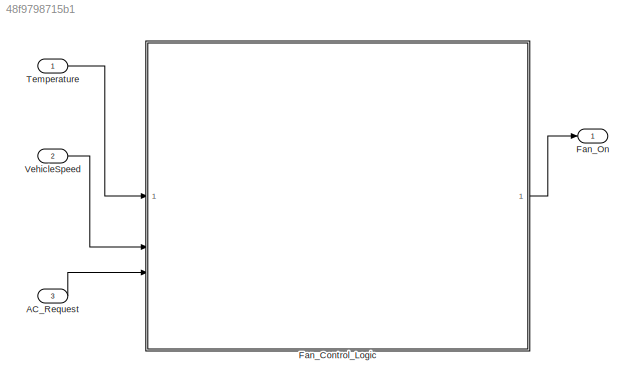
MODEL slx_48f9798715b1
KIND model
CONFIG AbsTol = auto
CONFIG EnableMultiTasking = off
CONFIG FixedStep = auto
CONFIG MaxStep = auto
CONFIG MinStep = auto
CONFIG RelTol = 1e-3
CONFIG SampleTimeConstraint = Unconstrained
CONFIG SolverName = VariableStepAuto
CONFIG StartTime = 0.0
CONFIG StopTime = 10.0
BLOCK [Inport] AC_Request
  OutDataTypeStr = boolean
  Port = 3
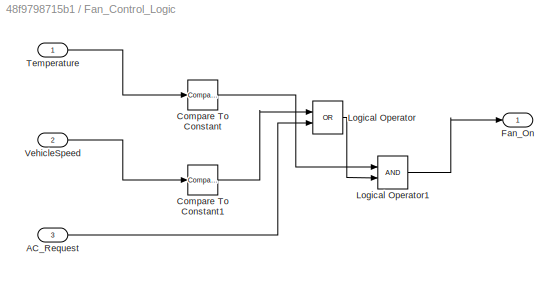
BLOCK [SubSystem] Fan_Control_Logic
BLOCK [Inport] Fan_Control_Logic/AC_Request
  Port = 3
BLOCK [Reference] Fan_Control_Logic/Compare To Constant  REF=simulink/Logic and Bit
Operations/Compare
To Constant
  SourceBlock = simulink/Logic and Bit\nOperations/Compare\nTo Constant
  SourceType = Compare To Constant
BLOCK [Reference] Fan_Control_Logic/Compare To Constant1  REF=simulink/Logic and Bit
Operations/Compare
To Constant
  SourceBlock = simulink/Logic and Bit\nOperations/Compare\nTo Constant
  SourceType = Compare To Constant
BLOCK [Outport] Fan_Control_Logic/Fan_On
BLOCK [Logic] Fan_Control_Logic/Logical Operator
  AllPortsSameDT = off
  Operator = OR
  OutDataTypeStr = boolean
BLOCK [Logic] Fan_Control_Logic/Logical Operator1
  AllPortsSameDT = off
  OutDataTypeStr = boolean
BLOCK [Inport] Fan_Control_Logic/Temperature
BLOCK [Inport] Fan_Control_Logic/VehicleSpeed
  Port = 2
BLOCK [Outport] Fan_On
BLOCK [Inport] Temperature
BLOCK [Inport] VehicleSpeed
  Port = 2
LINE AC_Request:1 -> Fan_Control_Logic:3
LINE Fan_Control_Logic/AC_Request:1 -> Fan_Control_Logic/Logical Operator:2
LINE Fan_Control_Logic/Compare To Constant1:1 -> Fan_Control_Logic/Logical Operator:1
LINE Fan_Control_Logic/Compare To Constant:1 -> Fan_Control_Logic/Logical Operator1:1
LINE Fan_Control_Logic/Logical Operator1:1 -> Fan_Control_Logic/Fan_On:1
LINE Fan_Control_Logic/Logical Operator:1 -> Fan_Control_Logic/Logical Operator1:2
LINE Fan_Control_Logic/Temperature:1 -> Fan_Control_Logic/Compare To Constant:1
LINE Fan_Control_Logic/VehicleSpeed:1 -> Fan_Control_Logic/Compare To Constant1:1
LINE Fan_Control_Logic:1 -> Fan_On:1
LINE Temperature:1 -> Fan_Control_Logic:1
LINE VehicleSpeed:1 -> Fan_Control_Logic:2
